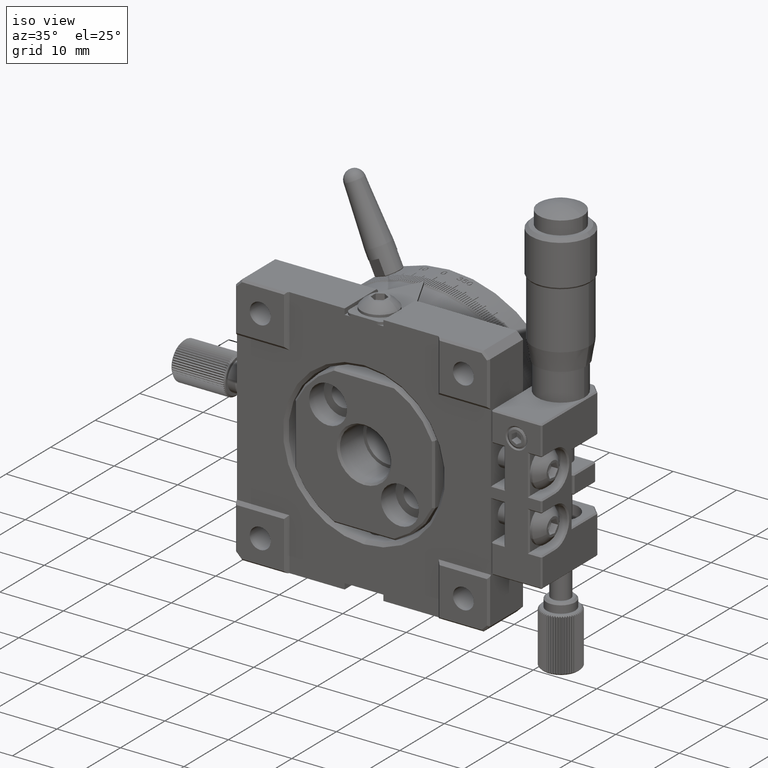
[diagram: clean part render]
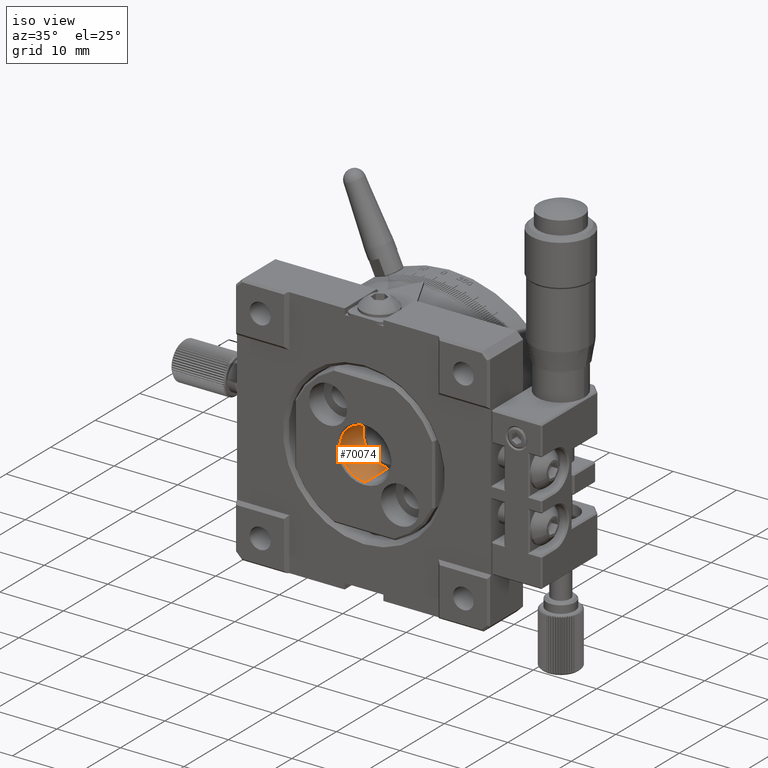
[diagram: same view with one face highlighted and labeled with its STEP entity id]
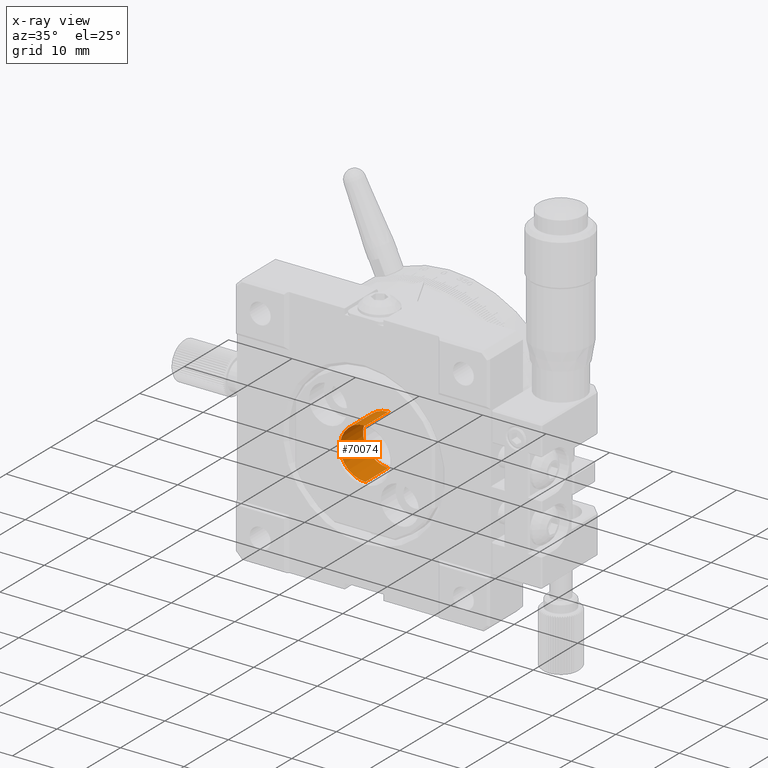
[diagram: x-ray of the same camera — body ghosted, the highlighted face saturated]
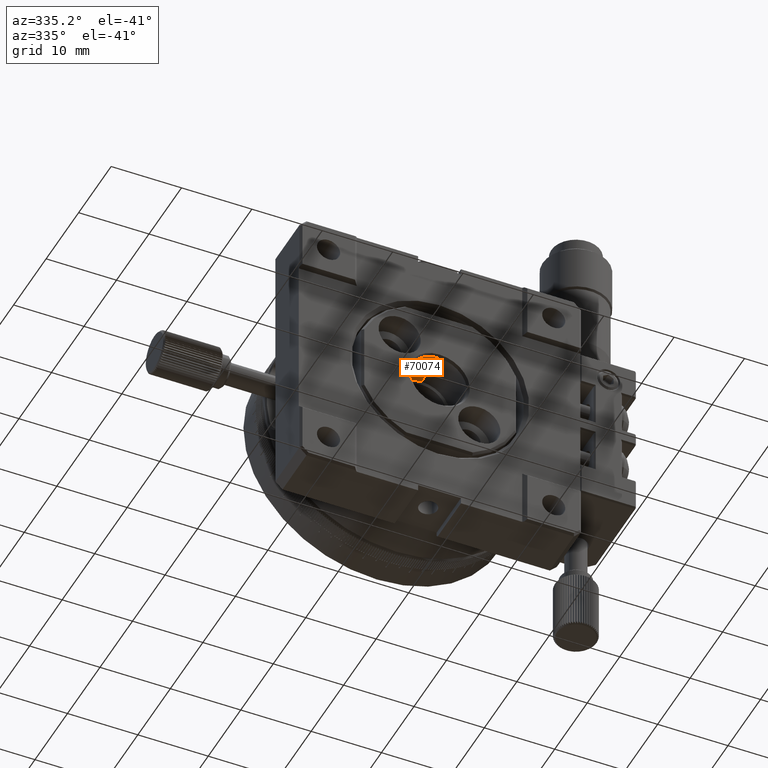
[diagram: same view with one face highlighted and labeled with its STEP entity id]
A machine part, iso view. The second image highlights one B-rep face of the part: STEP entity #70074.
The next image is the same camera in x-ray: the body ghosted, the highlighted face saturated — about 0% of this face is hidden behind the body in this view.
A second angle (auxiliary view) of the same face is appended — the face is thin or edge-on in the first view.
In plain terms, the highlighted cylindrical surface (edge-blend (fillet) strip) has radius 4 mm, axis along (0, 1, 0).
Its self-contained STEP definition (entity closure, byte-faithful):
#1174 = CARTESIAN_POINT ( 'NONE',  ( 4.898587196589411843E-16, 6.000000000000000000, -4.000000000000000000 ) ) ;
#1545 = FACE_OUTER_BOUND ( 'NONE', #3960, .T. ) ;
#3173 = ORIENTED_EDGE ( 'NONE', *, *, #36196, .F. ) ;
#3960 = EDGE_LOOP ( 'NONE', ( #13821, #6813, #20958, #3173 ) ) ;
#4378 = CARTESIAN_POINT ( 'NONE',  ( 4.898587196589411843E-16, 0.5000000000000000000, -4.000000000000000000 ) ) ;
#6813 = ORIENTED_EDGE ( 'NONE', *, *, #67279, .T. ) ;
#7039 = AXIS2_PLACEMENT_3D ( 'NONE', #61738, #30519, #55563 ) ;
#8101 = CYLINDRICAL_SURFACE ( 'NONE', #42270, 4.000000000000000000 ) ;
#8493 = DIRECTION ( 'NONE',  ( 0.000000000000000000, 0.000000000000000000, 1.000000000000000000 ) ) ;
#8904 = CARTESIAN_POINT ( 'NONE',  ( -4.814824860968089633E-32, 0.5000000000000000000, 0.000000000000000000 ) ) ;
#11744 = LINE ( 'NONE', #4378, #53682 ) ;
#12200 = VERTEX_POINT ( 'NONE', #60810 ) ;
#13821 = ORIENTED_EDGE ( 'NONE', *, *, #60877, .T. ) ;
#18293 = DIRECTION ( 'NONE',  ( 0.000000000000000000, -1.000000000000000000, 0.000000000000000000 ) ) ;
#18295 = DIRECTION ( 'NONE',  ( 0.000000000000000000, 1.000000000000000000, 0.000000000000000000 ) ) ;
#19084 = DIRECTION ( 'NONE',  ( 0.000000000000000000, 0.000000000000000000, 1.000000000000000000 ) ) ;
#20958 = ORIENTED_EDGE ( 'NONE', *, *, #73104, .T. ) ;
#21203 = DIRECTION ( 'NONE',  ( 0.000000000000000000, 1.000000000000000000, 0.000000000000000000 ) ) ;
#28488 = VECTOR ( 'NONE', #30024, 1000.000000000000000 ) ;
#30024 = DIRECTION ( 'NONE',  ( 0.000000000000000000, 1.000000000000000000, 0.000000000000000000 ) ) ;
#30353 = VERTEX_POINT ( 'NONE', #61650 ) ;
#30519 = DIRECTION ( 'NONE',  ( 0.000000000000000000, 1.000000000000000000, 0.000000000000000000 ) ) ;
#35253 = VERTEX_POINT ( 'NONE', #1174 ) ;
#35507 = VERTEX_POINT ( 'NONE', #54864 ) ;
#36196 = EDGE_CURVE ( 'NONE', #35507, #30353, #78932, .T. ) ;
#42270 = AXIS2_PLACEMENT_3D ( 'NONE', #8904, #21203, #8493 ) ;
#53682 = VECTOR ( 'NONE', #18295, 1000.000000000000000 ) ;
#53889 = CIRCLE ( 'NONE', #64406, 4.000000000000000000 ) ;
#54864 = CARTESIAN_POINT ( 'NONE',  ( -4.814824860968089633E-32, 0.8000000000000000444, 4.000000000000000000 ) ) ;
#55563 = DIRECTION ( 'NONE',  ( 0.000000000000000000, 0.000000000000000000, 1.000000000000000000 ) ) ;
#60810 = CARTESIAN_POINT ( 'NONE',  ( 4.898587196589411843E-16, 0.8000000000000000444, -4.000000000000000000 ) ) ;
#60877 = EDGE_CURVE ( 'NONE', #35507, #12200, #53889, .T. ) ;
#61650 = CARTESIAN_POINT ( 'NONE',  ( -4.814824860968089633E-32, 6.000000000000000000, 4.000000000000000000 ) ) ;
#61738 = CARTESIAN_POINT ( 'NONE',  ( -4.814824860968089633E-32, 6.000000000000000000, 0.000000000000000000 ) ) ;
#64406 = AXIS2_PLACEMENT_3D ( 'NONE', #69206, #18293, #19084 ) ;
#67279 = EDGE_CURVE ( 'NONE', #12200, #35253, #11744, .T. ) ;
#69206 = CARTESIAN_POINT ( 'NONE',  ( -4.814824860968089633E-32, 0.8000000000000000444, 0.000000000000000000 ) ) ;
#70074 = ADVANCED_FACE ( 'NONE', ( #1545 ), #8101, .F. ) ;
#73104 = EDGE_CURVE ( 'NONE', #35253, #30353, #77854, .T. ) ;
#73598 = CARTESIAN_POINT ( 'NONE',  ( -4.814824860968089633E-32, 0.5000000000000000000, 4.000000000000000000 ) ) ;
#77854 = CIRCLE ( 'NONE', #7039, 4.000000000000000000 ) ;
#78932 = LINE ( 'NONE', #73598, #28488 ) ;